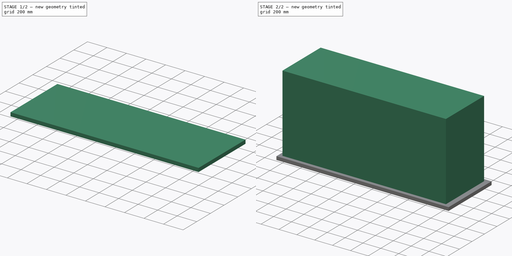
[diagram: build sequence overview — one tinted view per stage of 2, left to right]
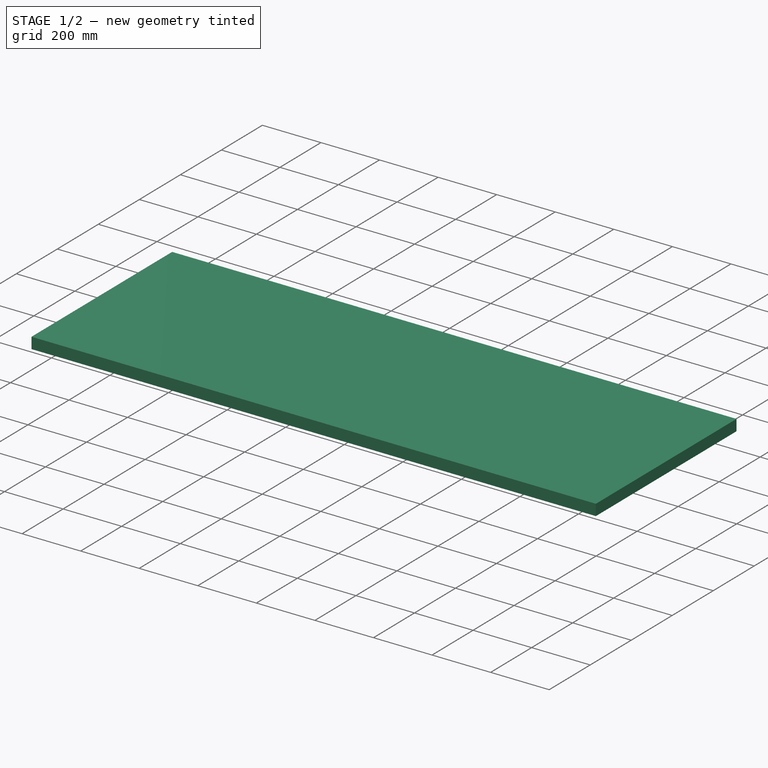
[diagram: stage 1 of 2 — iso view after this stage's code; geometry added in this stage tinted green]
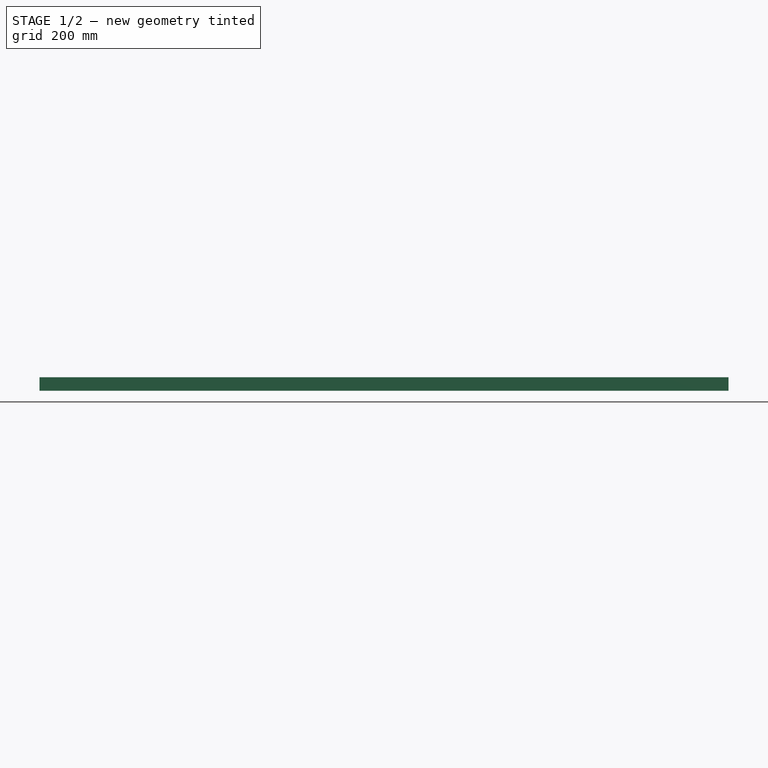
[diagram: stage 1 of 2 — front view after this stage's code; geometry added in this stage tinted green]
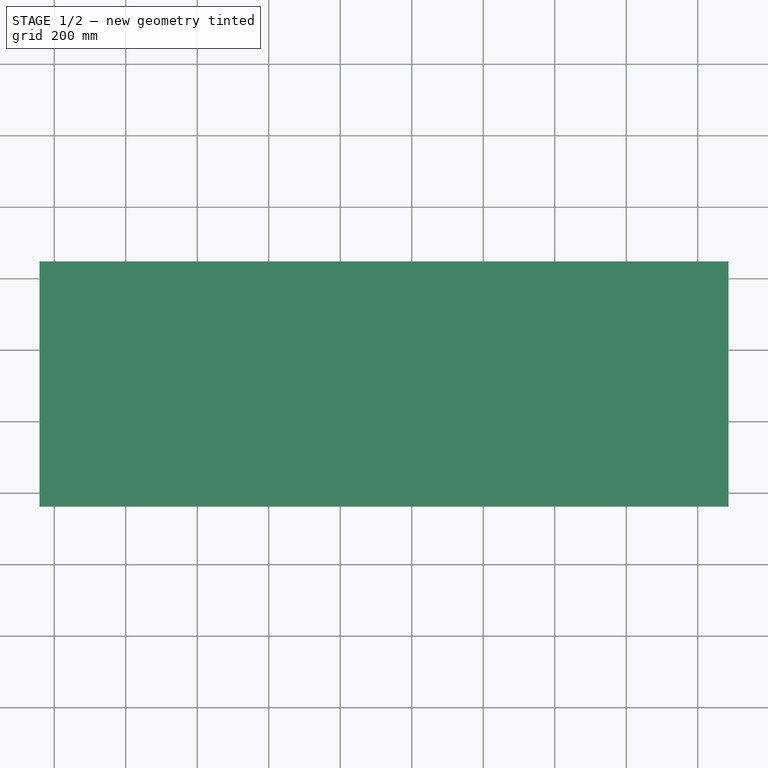
[diagram: stage 1 of 2 — top view after this stage's code; geometry added in this stage tinted green]
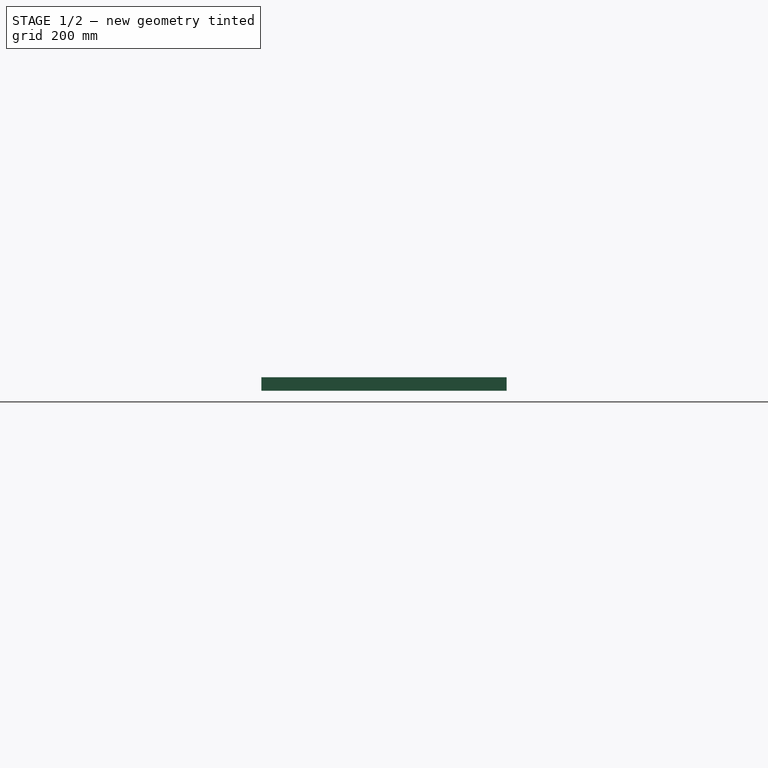
[diagram: stage 1 of 2 — right view after this stage's code; geometry added in this stage tinted green]
FCSTD DOCUMENT  (FreeCAD 0.20R29177 (Git))
Label: workBench
License: All rights reserved
LicenseURL: http://en.wikipedia.org/wiki/All_rights_reserved
objects: Sketcher::SketchObject×2, PartDesign::Pad×2, PartDesign::Body×2
note: 8 computed .brp shape members not serialized (recipe doc carries the construction recipe); baked Part::Feature solids carry a one-line shape summary decoded from their .brp

FEATURE [PartDesign::Body] Body
  Group = -> [Sketch,Pad]
  Origin = -> Origin
  Tip = -> Pad
FEATURE [Sketcher::SketchObject] Sketch001
  FullyConstrained = true
  MapMode = 5
  Support = -> [XY_Plane001]
  expr: Constraints[10] = Sketch.Constraints[10]
  expr: Constraints[9] = Sketch.Constraints[9]
  sketch-geometry (8):
    g0: LineSegment StartX=0 StartY=0 StartZ=0 EndX=1828.8 EndY=0 EndZ=0
    g1: LineSegment StartX=1828.8 StartY=0 StartZ=0 EndX=1828.8 EndY=609.6 EndZ=0
    g2: LineSegment StartX=1828.8 StartY=609.6 StartZ=0 EndX=0 EndY=609.6 EndZ=0
    g3: LineSegment StartX=0 StartY=609.6 StartZ=0 EndX=0 EndY=0 EndZ=0
    g4: LineSegment StartX=-41.275 StartY=647.7 StartZ=0 EndX=1885.95 EndY=647.7 EndZ=0
    g5: LineSegment StartX=1885.95 StartY=647.7 StartZ=0 EndX=1885.95 EndY=-38.1 EndZ=0
    g6: LineSegment StartX=1885.95 StartY=-38.1 StartZ=0 EndX=-41.275 EndY=-38.1 EndZ=0
    g7: LineSegment StartX=-41.275 StartY=-38.1 StartZ=0 EndX=-41.275 EndY=647.7 EndZ=0
  constraints (23):
    c: Coincident(g0,g1)
    c: Coincident(g1,g2)
    c: Coincident(g2,g3)
    c: Coincident(g3,g0)
    c: Horizontal(g0)
    c: Horizontal(g2)
    c: Vertical(g1)
    c: Vertical(g3)
    c: Coincident(g0,g-1)
    c: DistanceY(g3,g3) = 609.6
    c: DistanceX(g0,g0) = 1828.8
    c: Coincident(g4,g5)
    c: Coincident(g5,g6)
    c: Coincident(g6,g7)
    c: Coincident(g7,g4)
    c: Horizontal(g4)
    c: Horizontal(g6)
    c: Vertical(g5)
    c: Vertical(g7)
    c: DistanceY(g2,g4) = 38.1
    c: DistanceX(g4,g2) = 41.275
    c: DistanceX(g1,g4) = 57.15
    c: DistanceY(g6,g0) = 38.1
FEATURE [PartDesign::Pad] Pad001
  Direction = (0,0,1)
  Length = 38.1
  Length2 = 9.525
  Profile = -> Sketch001
  ReferenceAxis = -> Sketch001 [N_Axis]
  Type = 0
FEATURE [PartDesign::Body] Body001
  Group = -> [Sketch001,Pad001]
  Origin = -> Origin001
  Placement = pos=(0,0,902) rot=(0,0,1;0rad)
  Tip = -> Pad001
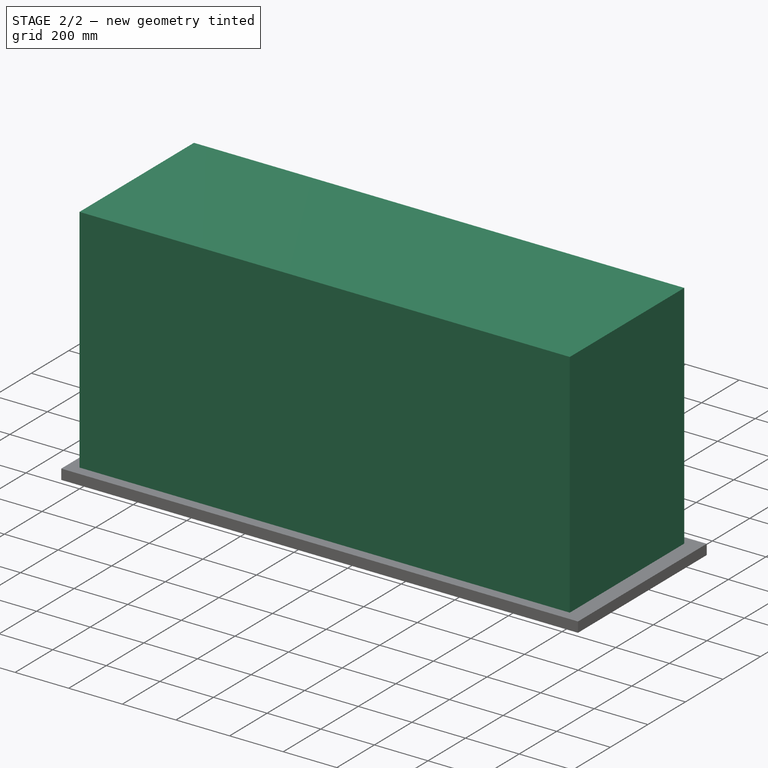
[diagram: stage 2 of 2 — iso view after this stage's code; geometry added in this stage tinted green]
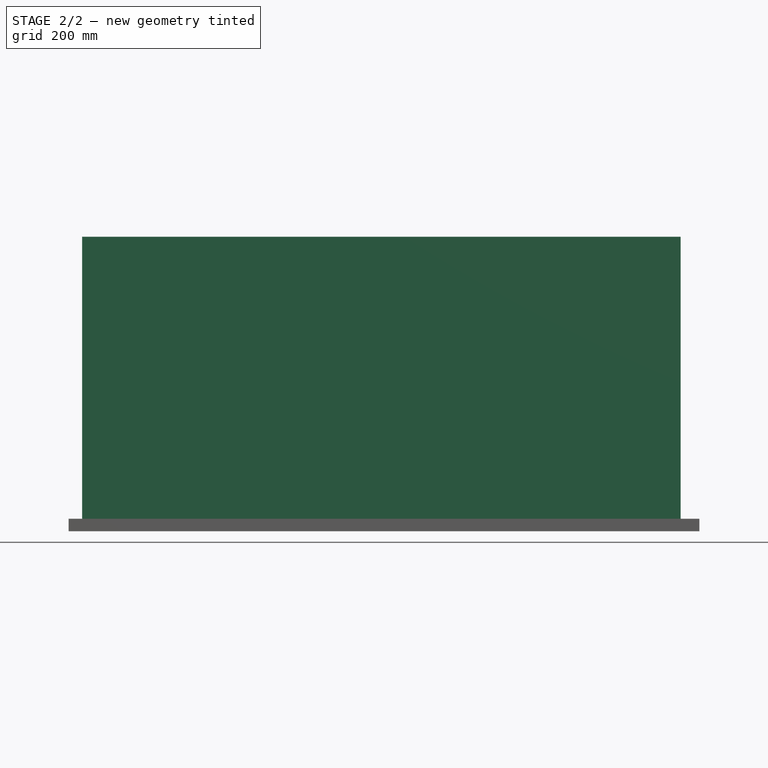
[diagram: stage 2 of 2 — front view after this stage's code; geometry added in this stage tinted green]
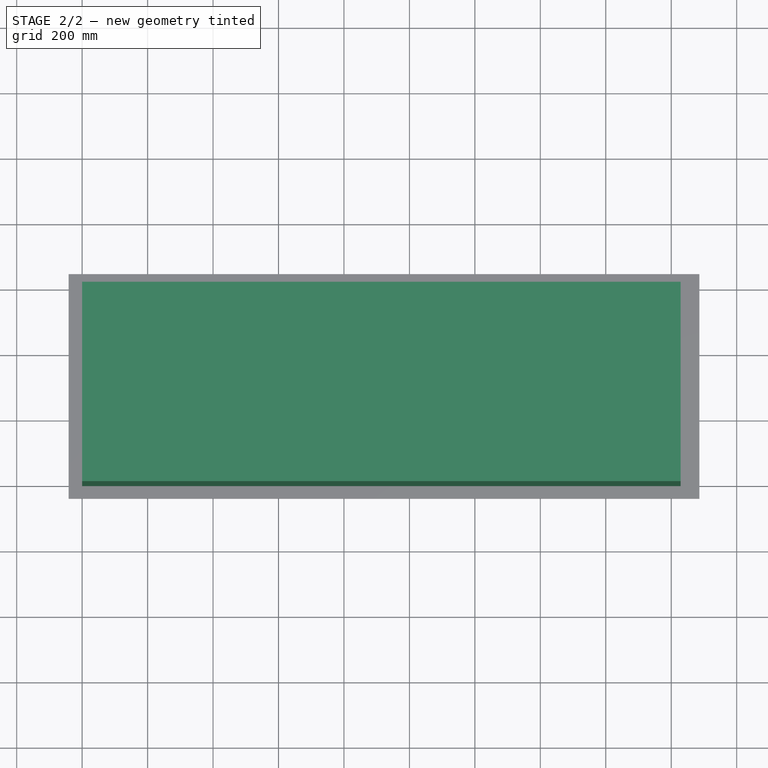
[diagram: stage 2 of 2 — top view after this stage's code; geometry added in this stage tinted green]
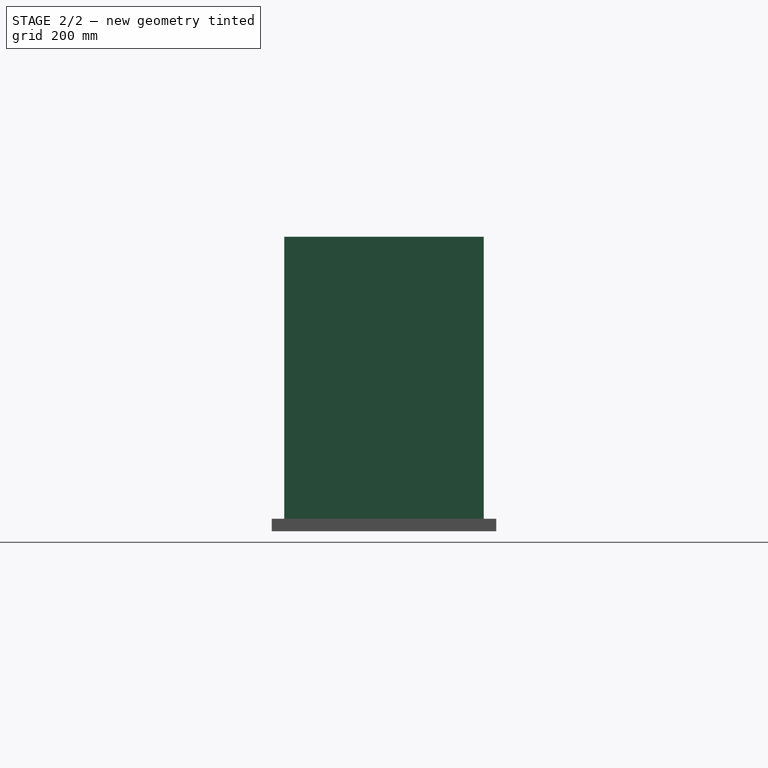
[diagram: stage 2 of 2 — right view after this stage's code; geometry added in this stage tinted green]
FEATURE [Sketcher::SketchObject] Sketch
  FullyConstrained = true
  MapMode = 5
  Support = -> [XY_Plane]
  sketch-geometry (4):
    g0: LineSegment StartX=0 StartY=0 StartZ=0 EndX=1828.8 EndY=0 EndZ=0
    g1: LineSegment StartX=1828.8 StartY=0 StartZ=0 EndX=1828.8 EndY=609.6 EndZ=0
    g2: LineSegment StartX=1828.8 StartY=609.6 StartZ=0 EndX=0 EndY=609.6 EndZ=0
    g3: LineSegment StartX=0 StartY=609.6 StartZ=0 EndX=0 EndY=0 EndZ=0
  constraints (11):
    c: Coincident(g0,g1)
    c: Coincident(g1,g2)
    c: Coincident(g2,g3)
    c: Coincident(g3,g0)
    c: Horizontal(g0)
    c: Horizontal(g2)
    c: Vertical(g1)
    c: Vertical(g3)
    c: Coincident(g0,g-1)
    c: DistanceY(g3,g3) = 609.6
    c: DistanceX(g0,g0) = 1828.8
FEATURE [PartDesign::Pad] Pad
  Direction = (0,0,1)
  Length = 900
  Length2 = 9.525
  Profile = -> Sketch
  ReferenceAxis = -> Sketch [N_Axis]
  Type = 0
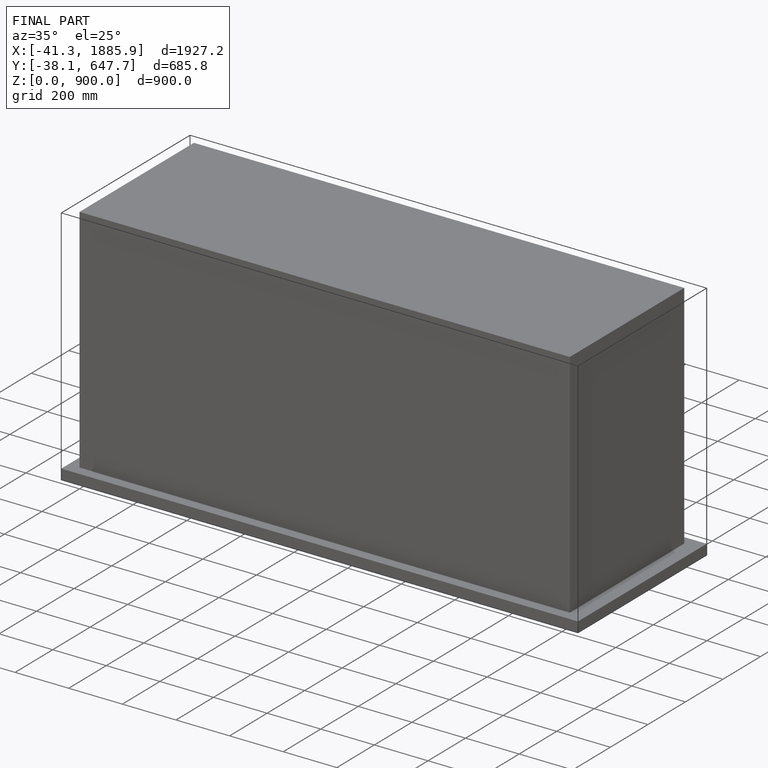
[diagram: finished part — iso view with bounding-box wireframe]
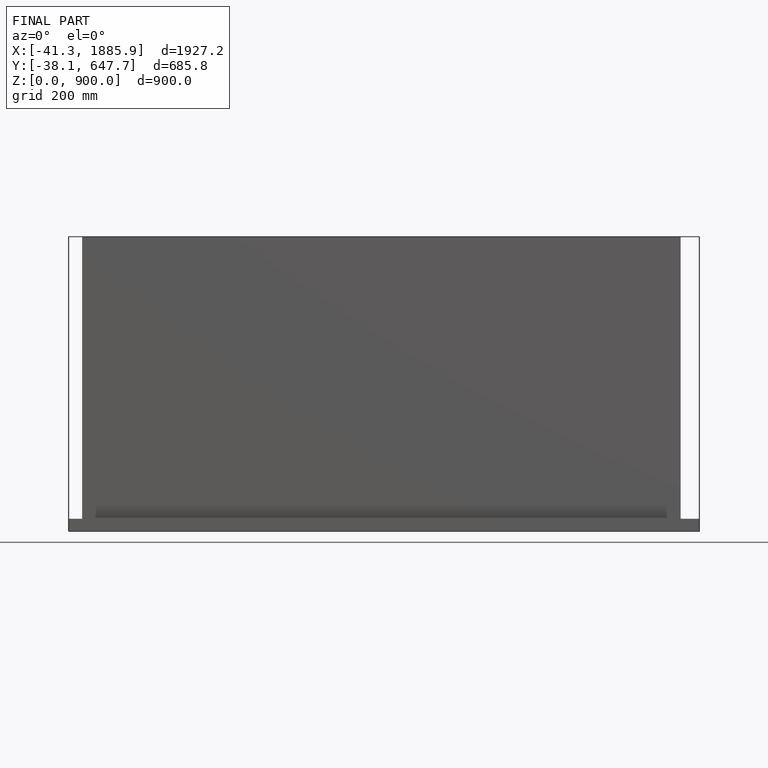
[diagram: finished part — front view with bounding-box wireframe]
